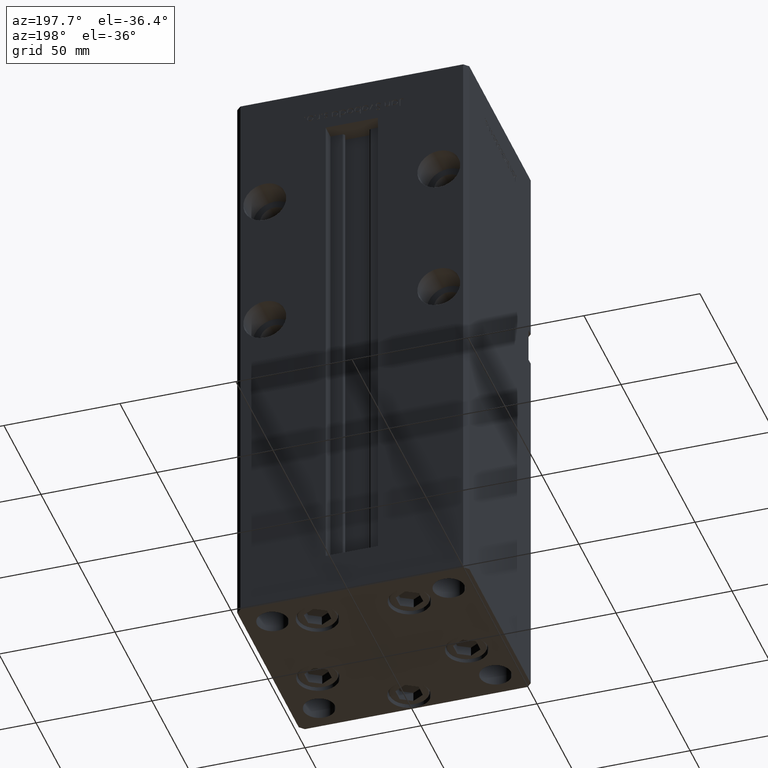
[diagram: clean part render]
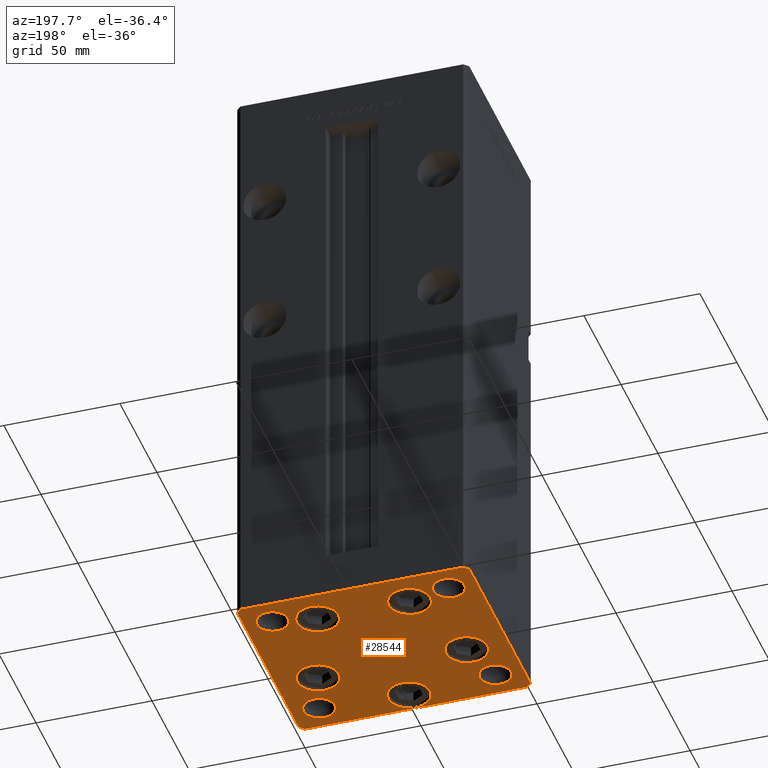
[diagram: same view with one face highlighted and labeled with its STEP entity id]
A machine part, auxiliary view. The second image highlights one B-rep face of the part: STEP entity #28544.
In plain terms, the highlighted planar face has unit normal (0, 0, -1).
Its self-contained STEP definition (entity closure, byte-faithful):
#81 = CARTESIAN_POINT ( 'NONE',  ( 41.05550741379015278, -11.33333333333332860, 0.000000000000000000 ) ) ;
#650 = VERTEX_POINT ( 'NONE', #47944 ) ;
#660 = EDGE_CURVE ( 'NONE', #27400, #26690, #21692, .T. ) ;
#839 = EDGE_CURVE ( 'NONE', #10397, #48142, #8807, .T. ) ;
#1036 = DIRECTION ( 'NONE',  ( -0.7071067811865474617, 0.7071067811865474617, 0.000000000000000000 ) ) ;
#1215 = EDGE_CURVE ( 'NONE', #47950, #44925, #4499, .T. ) ;
#1220 = VERTEX_POINT ( 'NONE', #28587 ) ;
#1221 = AXIS2_PLACEMENT_3D ( 'NONE', #41020, #32933, #19500 ) ;
#1315 = EDGE_CURVE ( 'NONE', #8149, #10721, #42035, .T. ) ;
#1953 = CARTESIAN_POINT ( 'NONE',  ( -50.00000000000000711, 41.49999999999995026, 0.000000000000000000 ) ) ;
#2252 = VECTOR ( 'NONE', #3410, 1000.000000000000000 ) ;
#2329 = EDGE_LOOP ( 'NONE', ( #4721, #52395 ) ) ;
#2427 = CARTESIAN_POINT ( 'NONE',  ( 38.00000000000000000, -31.49999999999999289, 0.000000000000000000 ) ) ;
#2439 = VECTOR ( 'NONE', #4175, 1000.000000000000000 ) ;
#2899 = DIRECTION ( 'NONE',  ( 0.000000000000000000, -0.000000000000000000, -1.000000000000000000 ) ) ;
#2985 = ORIENTED_EDGE ( 'NONE', *, *, #51182, .T. ) ;
#3387 = ORIENTED_EDGE ( 'NONE', *, *, #51491, .T. ) ;
#3410 = DIRECTION ( 'NONE',  ( -1.003213576468515193E-15, 1.000000000000000000, 0.000000000000000000 ) ) ;
#4110 = EDGE_CURVE ( 'NONE', #29851, #37747, #5451, .T. ) ;
#4175 = DIRECTION ( 'NONE',  ( -1.000000000000000000, -3.614007241618350743E-16, 0.000000000000000000 ) ) ;
#4499 = CIRCLE ( 'NONE', #15688, 9.000000000000000000 ) ;
#4504 = ORIENTED_EDGE ( 'NONE', *, *, #23164, .T. ) ;
#4721 = ORIENTED_EDGE ( 'NONE', *, *, #839, .T. ) ;
#5007 = CARTESIAN_POINT ( 'NONE',  ( -19.82068048781373903, 27.62499999999999645, 0.000000000000000000 ) ) ;
#5273 = EDGE_LOOP ( 'NONE', ( #13038, #26592 ) ) ;
#5451 = CIRCLE ( 'NONE', #34723, 9.000000000000000000 ) ;
#5557 = ORIENTED_EDGE ( 'NONE', *, *, #53213, .T. ) ;
#5950 = EDGE_LOOP ( 'NONE', ( #18144, #46898, #19342, #5557, #28519, #4504, #11843, #2985 ) ) ;
#6114 = EDGE_CURVE ( 'NONE', #15252, #52476, #7237, .T. ) ;
#6183 = EDGE_CURVE ( 'NONE', #30770, #33032, #7235, .T. ) ;
#6602 = DIRECTION ( 'NONE',  ( 0.000000000000000000, -0.000000000000000000, -1.000000000000000000 ) ) ;
#6664 = CARTESIAN_POINT ( 'NONE',  ( -32.05550741379015278, -11.33333333333333925, 0.000000000000000000 ) ) ;
#6678 = ORIENTED_EDGE ( 'NONE', *, *, #14407, .F. ) ;
#7235 = LINE ( 'NONE', #41156, #48462 ) ;
#7237 = CIRCLE ( 'NONE', #52842, 6.749999999999999112 ) ;
#7932 = AXIS2_PLACEMENT_3D ( 'NONE', #2427, #22903, #14807 ) ;
#8149 = VERTEX_POINT ( 'NONE', #18793 ) ;
#8186 = VERTEX_POINT ( 'NONE', #39779 ) ;
#8256 = VECTOR ( 'NONE', #43607, 1000.000000000000000 ) ;
#8614 = CARTESIAN_POINT ( 'NONE',  ( 9.000000000000003553, -34.00000000000000000, 0.000000000000000000 ) ) ;
#8704 = CARTESIAN_POINT ( 'NONE',  ( 23.05550741379014923, -11.33333333333333037, 0.000000000000000000 ) ) ;
#8767 = AXIS2_PLACEMENT_3D ( 'NONE', #20742, #16693, #49814 ) ;
#8807 = CIRCLE ( 'NONE', #12240, 6.749999999999999112 ) ;
#8880 = CARTESIAN_POINT ( 'NONE',  ( -31.24999999999999289, -31.50000000000000000, 0.000000000000000000 ) ) ;
#10238 = DIRECTION ( 'NONE',  ( 0.000000000000000000, -0.000000000000000000, -1.000000000000000000 ) ) ;
#10245 = DIRECTION ( 'NONE',  ( 0.7071067811865474617, -0.7071067811865474617, 0.000000000000000000 ) ) ;
#10299 = CARTESIAN_POINT ( 'NONE',  ( -38.00000000000000000, 31.50000000000000000, 0.000000000000000000 ) ) ;
#10397 = VERTEX_POINT ( 'NONE', #8880 ) ;
#10721 = VERTEX_POINT ( 'NONE', #35525 ) ;
#10790 = AXIS2_PLACEMENT_3D ( 'NONE', #18651, #18382, #34548 ) ;
#10834 = VECTOR ( 'NONE', #14342, 1000.000000000000000 ) ;
#11554 = FACE_BOUND ( 'NONE', #2329, .T. ) ;
#11708 = EDGE_CURVE ( 'NONE', #39919, #8186, #24445, .T. ) ;
#11843 = ORIENTED_EDGE ( 'NONE', *, *, #6183, .T. ) ;
#12240 = AXIS2_PLACEMENT_3D ( 'NONE', #38391, #6602, #38926 ) ;
#12369 = LINE ( 'NONE', #29317, #14500 ) ;
#12511 = AXIS2_PLACEMENT_3D ( 'NONE', #47633, #31733, #27157 ) ;
#12634 = ORIENTED_EDGE ( 'NONE', *, *, #1215, .T. ) ;
#12913 = CIRCLE ( 'NONE', #24128, 6.749999999999999112 ) ;
#13038 = ORIENTED_EDGE ( 'NONE', *, *, #4110, .T. ) ;
#13211 = VERTEX_POINT ( 'NONE', #45476 ) ;
#13250 = EDGE_LOOP ( 'NONE', ( #12634, #37150 ) ) ;
#13511 = DIRECTION ( 'NONE',  ( 0.000000000000000000, -0.000000000000000000, -1.000000000000000000 ) ) ;
#13825 = VERTEX_POINT ( 'NONE', #16265 ) ;
#13855 = CARTESIAN_POINT ( 'NONE',  ( 50.00000000000000000, -41.49999999999999289, 0.000000000000000000 ) ) ;
#13969 = ORIENTED_EDGE ( 'NONE', *, *, #49235, .T. ) ;
#14342 = DIRECTION ( 'NONE',  ( 8.360113137237628665E-17, -1.000000000000000000, 0.000000000000000000 ) ) ;
#14407 = EDGE_CURVE ( 'NONE', #8186, #39919, #52972, .T. ) ;
#14500 = VECTOR ( 'NONE', #1036, 1000.000000000000114 ) ;
#14807 = DIRECTION ( 'NONE',  ( 1.000000000000000000, 0.000000000000000000, 0.000000000000000000 ) ) ;
#14975 = CIRCLE ( 'NONE', #38156, 9.000000000000001776 ) ;
#15252 = VERTEX_POINT ( 'NONE', #53089 ) ;
#15537 = ORIENTED_EDGE ( 'NONE', *, *, #11708, .F. ) ;
#15672 = EDGE_LOOP ( 'NONE', ( #28160, #43305 ) ) ;
#15688 = AXIS2_PLACEMENT_3D ( 'NONE', #36690, #53116, #20528 ) ;
#15691 = DIRECTION ( 'NONE',  ( 1.000000000000000000, 0.000000000000000000, 0.000000000000000000 ) ) ;
#15754 = CARTESIAN_POINT ( 'NONE',  ( 4.163799117101000559E-15, -34.00000000000000000, 0.000000000000000000 ) ) ;
#15859 = CARTESIAN_POINT ( 'NONE',  ( 0.000000000000000000, 0.000000000000000000, 0.000000000000000000 ) ) ;
#16128 = FACE_BOUND ( 'NONE', #32573, .T. ) ;
#16252 = DIRECTION ( 'NONE',  ( 1.000000000000000000, 0.000000000000000000, 0.000000000000000000 ) ) ;
#16265 = CARTESIAN_POINT ( 'NONE',  ( 49.99999999999992184, 41.49999999999998579, 0.000000000000000000 ) ) ;
#16693 = DIRECTION ( 'NONE',  ( 0.000000000000000000, -0.000000000000000000, -1.000000000000000000 ) ) ;
#17375 = CIRCLE ( 'NONE', #8767, 8.999999999999998224 ) ;
#17663 = DIRECTION ( 'NONE',  ( 1.000000000000000000, 0.000000000000000000, 0.000000000000000000 ) ) ;
#17704 = AXIS2_PLACEMENT_3D ( 'NONE', #47136, #10238, #39046 ) ;
#18074 = EDGE_LOOP ( 'NONE', ( #24243, #23019 ) ) ;
#18144 = ORIENTED_EDGE ( 'NONE', *, *, #1315, .T. ) ;
#18382 = DIRECTION ( 'NONE',  ( 0.000000000000000000, -0.000000000000000000, -1.000000000000000000 ) ) ;
#18480 = CIRCLE ( 'NONE', #35676, 8.999999999999998224 ) ;
#18651 = CARTESIAN_POINT ( 'NONE',  ( -19.82068048781373903, 27.62499999999999645, 0.000000000000000000 ) ) ;
#18793 = CARTESIAN_POINT ( 'NONE',  ( -50.00000000000000000, -41.50000000000000000, 0.000000000000000000 ) ) ;
#19342 = ORIENTED_EDGE ( 'NONE', *, *, #51919, .T. ) ;
#19500 = DIRECTION ( 'NONE',  ( 1.000000000000000000, 0.000000000000000000, 0.000000000000000000 ) ) ;
#20179 = FACE_BOUND ( 'NONE', #18074, .T. ) ;
#20262 = CIRCLE ( 'NONE', #10790, 9.000000000000000000 ) ;
#20276 = EDGE_LOOP ( 'NONE', ( #6678, #15537 ) ) ;
#20354 = LINE ( 'NONE', #37040, #2439 ) ;
#20528 = DIRECTION ( 'NONE',  ( 1.000000000000000000, 0.000000000000000000, 0.000000000000000000 ) ) ;
#20704 = PLANE ( 'NONE',  #42885 ) ;
#20742 = CARTESIAN_POINT ( 'NONE',  ( 19.82068048781373193, 27.62500000000000000, 0.000000000000000000 ) ) ;
#20846 = VECTOR ( 'NONE', #15691, 1000.000000000000000 ) ;
#20965 = ORIENTED_EDGE ( 'NONE', *, *, #46782, .T. ) ;
#21441 = DIRECTION ( 'NONE',  ( 0.000000000000000000, -0.000000000000000000, -1.000000000000000000 ) ) ;
#21692 = CIRCLE ( 'NONE', #7932, 6.749999999999999112 ) ;
#22283 = EDGE_CURVE ( 'NONE', #44925, #47950, #50573, .T. ) ;
#22616 = AXIS2_PLACEMENT_3D ( 'NONE', #30734, #13511, #29926 ) ;
#22903 = DIRECTION ( 'NONE',  ( 0.000000000000000000, -0.000000000000000000, -1.000000000000000000 ) ) ;
#23019 = ORIENTED_EDGE ( 'NONE', *, *, #25337, .F. ) ;
#23030 = CIRCLE ( 'NONE', #37646, 6.749999999999999112 ) ;
#23066 = AXIS2_PLACEMENT_3D ( 'NONE', #15754, #44843, #24121 ) ;
#23085 = CARTESIAN_POINT ( 'NONE',  ( -10.82068048781373903, 27.62499999999999645, 0.000000000000000000 ) ) ;
#23164 = EDGE_CURVE ( 'NONE', #650, #30770, #20354, .T. ) ;
#23379 = CARTESIAN_POINT ( 'NONE',  ( 32.05550741379015278, -11.33333333333333037, 0.000000000000000000 ) ) ;
#24121 = DIRECTION ( 'NONE',  ( 1.000000000000000000, 0.000000000000000000, 0.000000000000000000 ) ) ;
#24128 = AXIS2_PLACEMENT_3D ( 'NONE', #31832, #32107, #43965 ) ;
#24243 = ORIENTED_EDGE ( 'NONE', *, *, #6114, .F. ) ;
#24445 = CIRCLE ( 'NONE', #1221, 6.749999999999999112 ) ;
#24754 = FACE_BOUND ( 'NONE', #39417, .T. ) ;
#24952 = LINE ( 'NONE', #44618, #2252 ) ;
#24964 = CARTESIAN_POINT ( 'NONE',  ( 31.25000000000000000, -31.49999999999999289, 0.000000000000000000 ) ) ;
#25008 = CARTESIAN_POINT ( 'NONE',  ( -32.05550741379015278, -11.33333333333333925, 0.000000000000000000 ) ) ;
#25025 = CARTESIAN_POINT ( 'NONE',  ( 44.75000000000000000, -31.49999999999999289, 0.000000000000000000 ) ) ;
#25109 = CARTESIAN_POINT ( 'NONE',  ( -47.99999999999999289, -43.50000000000001421, 0.000000000000000000 ) ) ;
#25114 = VERTEX_POINT ( 'NONE', #40514 ) ;
#25337 = EDGE_CURVE ( 'NONE', #52476, #15252, #23030, .T. ) ;
#25353 = CARTESIAN_POINT ( 'NONE',  ( 10.82068048781373193, 27.62500000000000000, 0.000000000000000000 ) ) ;
#25866 = CIRCLE ( 'NONE', #41375, 9.000000000000001776 ) ;
#25891 = VERTEX_POINT ( 'NONE', #27065 ) ;
#25944 = CIRCLE ( 'NONE', #22616, 6.749999999999999112 ) ;
#26592 = ORIENTED_EDGE ( 'NONE', *, *, #51050, .T. ) ;
#26690 = VERTEX_POINT ( 'NONE', #24964 ) ;
#27065 = CARTESIAN_POINT ( 'NONE',  ( 28.82068048781372838, 27.62500000000000000, 0.000000000000000000 ) ) ;
#27157 = DIRECTION ( 'NONE',  ( 1.000000000000000000, 0.000000000000000000, 0.000000000000000000 ) ) ;
#27400 = VERTEX_POINT ( 'NONE', #25025 ) ;
#27435 = CARTESIAN_POINT ( 'NONE',  ( 47.99999999999999289, -43.50000000000001421, 0.000000000000000000 ) ) ;
#27458 = EDGE_CURVE ( 'NONE', #13825, #650, #12369, .T. ) ;
#28007 = CIRCLE ( 'NONE', #17704, 9.000000000000001776 ) ;
#28160 = ORIENTED_EDGE ( 'NONE', *, *, #660, .T. ) ;
#28519 = ORIENTED_EDGE ( 'NONE', *, *, #27458, .T. ) ;
#28544 = ADVANCED_FACE ( 'NONE', ( #32559, #24754, #16128, #40110, #32817, #29046, #44681, #20179, #44418, #11554 ), #20704, .T. ) ;
#28587 = CARTESIAN_POINT ( 'NONE',  ( -41.05550741379015278, -11.33333333333333925, 0.000000000000000000 ) ) ;
#28671 = CARTESIAN_POINT ( 'NONE',  ( -38.00000000000000000, 31.50000000000000000, 0.000000000000000000 ) ) ;
#28679 = EDGE_CURVE ( 'NONE', #13211, #1220, #29155, .T. ) ;
#29046 = FACE_BOUND ( 'NONE', #20276, .T. ) ;
#29155 = CIRCLE ( 'NONE', #40342, 9.000000000000001776 ) ;
#29317 = CARTESIAN_POINT ( 'NONE',  ( 49.99999999999992184, 41.49999999999998579, 0.000000000000000000 ) ) ;
#29851 = VERTEX_POINT ( 'NONE', #47547 ) ;
#29926 = DIRECTION ( 'NONE',  ( 1.000000000000000000, 0.000000000000000000, 0.000000000000000000 ) ) ;
#30734 = CARTESIAN_POINT ( 'NONE',  ( -37.99999999999999289, -31.50000000000000000, 0.000000000000000000 ) ) ;
#30770 = VERTEX_POINT ( 'NONE', #48028 ) ;
#31447 = CARTESIAN_POINT ( 'NONE',  ( -8.999999999999996447, -34.00000000000000000, 0.000000000000000000 ) ) ;
#31581 = CARTESIAN_POINT ( 'NONE',  ( -44.74999999999999289, -31.50000000000000000, 0.000000000000000000 ) ) ;
#31733 = DIRECTION ( 'NONE',  ( -0.000000000000000000, 0.000000000000000000, 1.000000000000000000 ) ) ;
#31832 = CARTESIAN_POINT ( 'NONE',  ( 38.00000000000000000, -31.49999999999999289, 0.000000000000000000 ) ) ;
#31970 = DIRECTION ( 'NONE',  ( 0.000000000000000000, -0.000000000000000000, -1.000000000000000000 ) ) ;
#32073 = VECTOR ( 'NONE', #10245, 1000.000000000000114 ) ;
#32107 = DIRECTION ( 'NONE',  ( 0.000000000000000000, -0.000000000000000000, -1.000000000000000000 ) ) ;
#32559 = FACE_BOUND ( 'NONE', #5273, .T. ) ;
#32573 = EDGE_LOOP ( 'NONE', ( #44649, #3387 ) ) ;
#32673 = EDGE_LOOP ( 'NONE', ( #20965, #48411 ) ) ;
#32704 = CARTESIAN_POINT ( 'NONE',  ( -50.00000000000000711, 41.49999999999995026, 0.000000000000000000 ) ) ;
#32719 = DIRECTION ( 'NONE',  ( -0.000000000000000000, 0.000000000000000000, 1.000000000000000000 ) ) ;
#32817 = FACE_BOUND ( 'NONE', #32673, .T. ) ;
#32933 = DIRECTION ( 'NONE',  ( -0.000000000000000000, 0.000000000000000000, 1.000000000000000000 ) ) ;
#33032 = VERTEX_POINT ( 'NONE', #32704 ) ;
#33255 = EDGE_CURVE ( 'NONE', #26690, #27400, #12913, .T. ) ;
#34548 = DIRECTION ( 'NONE',  ( 1.000000000000000000, 0.000000000000000000, 0.000000000000000000 ) ) ;
#34723 = AXIS2_PLACEMENT_3D ( 'NONE', #5007, #21441, #17663 ) ;
#34822 = EDGE_CURVE ( 'NONE', #39870, #41490, #25866, .T. ) ;
#35495 = DIRECTION ( 'NONE',  ( 1.000000000000000000, 0.000000000000000000, 0.000000000000000000 ) ) ;
#35525 = CARTESIAN_POINT ( 'NONE',  ( -47.99999999999999289, -43.50000000000001421, 0.000000000000000000 ) ) ;
#35600 = CARTESIAN_POINT ( 'NONE',  ( -44.75000000000000000, 31.50000000000000000, 0.000000000000000000 ) ) ;
#35676 = AXIS2_PLACEMENT_3D ( 'NONE', #36461, #49107, #16252 ) ;
#36461 = CARTESIAN_POINT ( 'NONE',  ( 19.82068048781373193, 27.62500000000000000, 0.000000000000000000 ) ) ;
#36608 = DIRECTION ( 'NONE',  ( 1.000000000000000000, 0.000000000000000000, 0.000000000000000000 ) ) ;
#36690 = CARTESIAN_POINT ( 'NONE',  ( 4.163799117101000559E-15, -34.00000000000000000, 0.000000000000000000 ) ) ;
#37040 = CARTESIAN_POINT ( 'NONE',  ( 47.99999999999990763, 43.50000000000000000, 0.000000000000000000 ) ) ;
#37150 = ORIENTED_EDGE ( 'NONE', *, *, #22283, .T. ) ;
#37646 = AXIS2_PLACEMENT_3D ( 'NONE', #10299, #47195, #51232 ) ;
#37747 = VERTEX_POINT ( 'NONE', #23085 ) ;
#38156 = AXIS2_PLACEMENT_3D ( 'NONE', #6664, #31970, #51905 ) ;
#38391 = CARTESIAN_POINT ( 'NONE',  ( -37.99999999999999289, -31.50000000000000000, 0.000000000000000000 ) ) ;
#38788 = CARTESIAN_POINT ( 'NONE',  ( -50.00000000000000000, -41.50000000000000000, 0.000000000000000000 ) ) ;
#38850 = LINE ( 'NONE', #1953, #10834 ) ;
#38926 = DIRECTION ( 'NONE',  ( 1.000000000000000000, 0.000000000000000000, 0.000000000000000000 ) ) ;
#39024 = LINE ( 'NONE', #27435, #8256 ) ;
#39046 = DIRECTION ( 'NONE',  ( 1.000000000000000000, 0.000000000000000000, 0.000000000000000000 ) ) ;
#39417 = EDGE_LOOP ( 'NONE', ( #13969, #48440 ) ) ;
#39641 = CARTESIAN_POINT ( 'NONE',  ( 31.25000000000000000, 31.49999999999999289, 0.000000000000000000 ) ) ;
#39779 = CARTESIAN_POINT ( 'NONE',  ( 44.75000000000000000, 31.49999999999999289, 0.000000000000000000 ) ) ;
#39870 = VERTEX_POINT ( 'NONE', #8704 ) ;
#39919 = VERTEX_POINT ( 'NONE', #39641 ) ;
#40110 = FACE_BOUND ( 'NONE', #13250, .T. ) ;
#40342 = AXIS2_PLACEMENT_3D ( 'NONE', #25008, #41424, #45726 ) ;
#40514 = CARTESIAN_POINT ( 'NONE',  ( 47.99999999999999289, -43.50000000000001421, 0.000000000000000000 ) ) ;
#41020 = CARTESIAN_POINT ( 'NONE',  ( 38.00000000000000000, 31.49999999999999289, 0.000000000000000000 ) ) ;
#41156 = CARTESIAN_POINT ( 'NONE',  ( -48.00000000000000711, 43.49999999999996447, 0.000000000000000000 ) ) ;
#41375 = AXIS2_PLACEMENT_3D ( 'NONE', #23379, #2899, #35495 ) ;
#41424 = DIRECTION ( 'NONE',  ( 0.000000000000000000, -0.000000000000000000, -1.000000000000000000 ) ) ;
#41490 = VERTEX_POINT ( 'NONE', #81 ) ;
#41622 = EDGE_CURVE ( 'NONE', #48142, #10397, #25944, .T. ) ;
#41811 = EDGE_CURVE ( 'NONE', #25891, #47499, #17375, .T. ) ;
#42035 = LINE ( 'NONE', #38788, #32073 ) ;
#42885 = AXIS2_PLACEMENT_3D ( 'NONE', #15859, #53036, #36608 ) ;
#43305 = ORIENTED_EDGE ( 'NONE', *, *, #33255, .T. ) ;
#43607 = DIRECTION ( 'NONE',  ( 0.7071067811865463515, 0.7071067811865487940, 0.000000000000000000 ) ) ;
#43897 = EDGE_CURVE ( 'NONE', #10721, #25114, #45317, .T. ) ;
#43965 = DIRECTION ( 'NONE',  ( 1.000000000000000000, 0.000000000000000000, 0.000000000000000000 ) ) ;
#44418 = FACE_OUTER_BOUND ( 'NONE', #5950, .T. ) ;
#44618 = CARTESIAN_POINT ( 'NONE',  ( 50.00000000000000000, -41.49999999999999289, 0.000000000000000000 ) ) ;
#44649 = ORIENTED_EDGE ( 'NONE', *, *, #34822, .T. ) ;
#44681 = FACE_BOUND ( 'NONE', #15672, .T. ) ;
#44843 = DIRECTION ( 'NONE',  ( 0.000000000000000000, -0.000000000000000000, -1.000000000000000000 ) ) ;
#44925 = VERTEX_POINT ( 'NONE', #8614 ) ;
#45111 = DIRECTION ( 'NONE',  ( 1.000000000000000000, 0.000000000000000000, 0.000000000000000000 ) ) ;
#45317 = LINE ( 'NONE', #25109, #20846 ) ;
#45476 = CARTESIAN_POINT ( 'NONE',  ( -23.05550741379014923, -11.33333333333333748, 0.000000000000000000 ) ) ;
#45726 = DIRECTION ( 'NONE',  ( 1.000000000000000000, 0.000000000000000000, 0.000000000000000000 ) ) ;
#46782 = EDGE_CURVE ( 'NONE', #1220, #13211, #14975, .T. ) ;
#46898 = ORIENTED_EDGE ( 'NONE', *, *, #43897, .T. ) ;
#47136 = CARTESIAN_POINT ( 'NONE',  ( 32.05550741379015278, -11.33333333333333037, 0.000000000000000000 ) ) ;
#47195 = DIRECTION ( 'NONE',  ( -0.000000000000000000, 0.000000000000000000, 1.000000000000000000 ) ) ;
#47499 = VERTEX_POINT ( 'NONE', #25353 ) ;
#47547 = CARTESIAN_POINT ( 'NONE',  ( -28.82068048781373548, 27.62499999999999645, 0.000000000000000000 ) ) ;
#47633 = CARTESIAN_POINT ( 'NONE',  ( 38.00000000000000000, 31.49999999999999289, 0.000000000000000000 ) ) ;
#47944 = CARTESIAN_POINT ( 'NONE',  ( 47.99999999999990763, 43.50000000000000000, 0.000000000000000000 ) ) ;
#47950 = VERTEX_POINT ( 'NONE', #31447 ) ;
#48028 = CARTESIAN_POINT ( 'NONE',  ( -48.00000000000000711, 43.49999999999996447, 0.000000000000000000 ) ) ;
#48142 = VERTEX_POINT ( 'NONE', #31581 ) ;
#48411 = ORIENTED_EDGE ( 'NONE', *, *, #28679, .T. ) ;
#48440 = ORIENTED_EDGE ( 'NONE', *, *, #41811, .T. ) ;
#48462 = VECTOR ( 'NONE', #52483, 1000.000000000000000 ) ;
#49107 = DIRECTION ( 'NONE',  ( 0.000000000000000000, -0.000000000000000000, -1.000000000000000000 ) ) ;
#49159 = VERTEX_POINT ( 'NONE', #13855 ) ;
#49235 = EDGE_CURVE ( 'NONE', #47499, #25891, #18480, .T. ) ;
#49814 = DIRECTION ( 'NONE',  ( 1.000000000000000000, 0.000000000000000000, 0.000000000000000000 ) ) ;
#50573 = CIRCLE ( 'NONE', #23066, 9.000000000000000000 ) ;
#51050 = EDGE_CURVE ( 'NONE', #37747, #29851, #20262, .T. ) ;
#51182 = EDGE_CURVE ( 'NONE', #33032, #8149, #38850, .T. ) ;
#51232 = DIRECTION ( 'NONE',  ( 1.000000000000000000, 0.000000000000000000, 0.000000000000000000 ) ) ;
#51491 = EDGE_CURVE ( 'NONE', #41490, #39870, #28007, .T. ) ;
#51905 = DIRECTION ( 'NONE',  ( 1.000000000000000000, 0.000000000000000000, 0.000000000000000000 ) ) ;
#51919 = EDGE_CURVE ( 'NONE', #25114, #49159, #39024, .T. ) ;
#52395 = ORIENTED_EDGE ( 'NONE', *, *, #41622, .T. ) ;
#52476 = VERTEX_POINT ( 'NONE', #35600 ) ;
#52483 = DIRECTION ( 'NONE',  ( -0.7071067811865463515, -0.7071067811865487940, 0.000000000000000000 ) ) ;
#52842 = AXIS2_PLACEMENT_3D ( 'NONE', #28671, #32719, #45111 ) ;
#52972 = CIRCLE ( 'NONE', #12511, 6.749999999999999112 ) ;
#53036 = DIRECTION ( 'NONE',  ( -0.000000000000000000, 0.000000000000000000, 1.000000000000000000 ) ) ;
#53089 = CARTESIAN_POINT ( 'NONE',  ( -31.25000000000000000, 31.50000000000000000, 0.000000000000000000 ) ) ;
#53116 = DIRECTION ( 'NONE',  ( 0.000000000000000000, -0.000000000000000000, -1.000000000000000000 ) ) ;
#53213 = EDGE_CURVE ( 'NONE', #49159, #13825, #24952, .T. ) ;